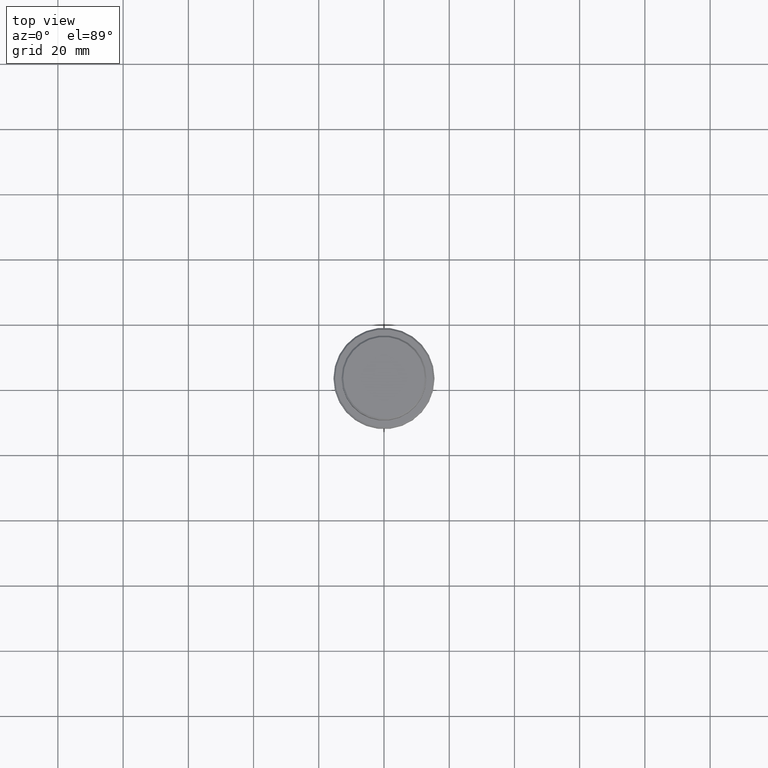
[diagram: clean part render]
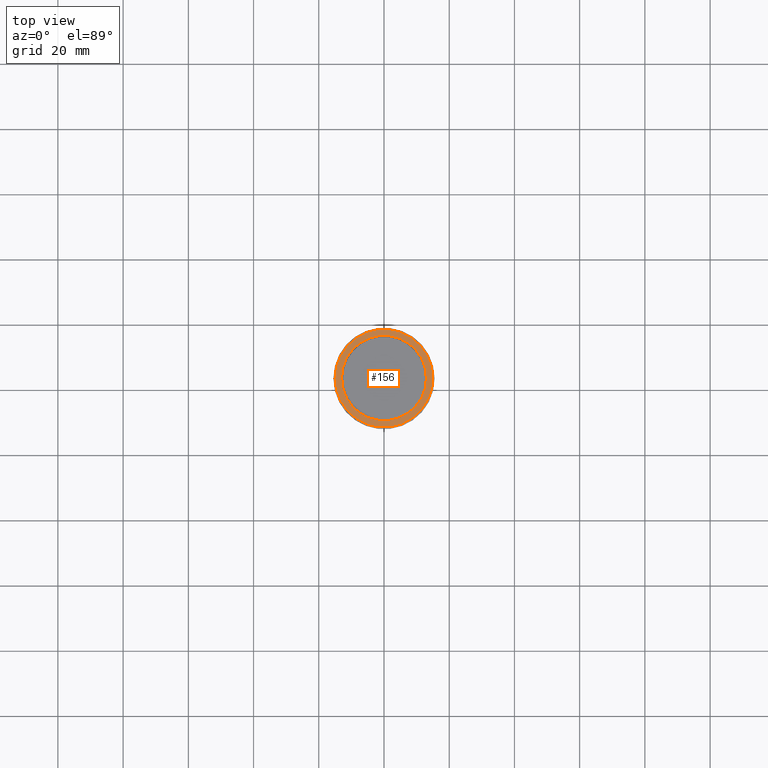
[diagram: same view with one face highlighted and labeled with its STEP entity id]
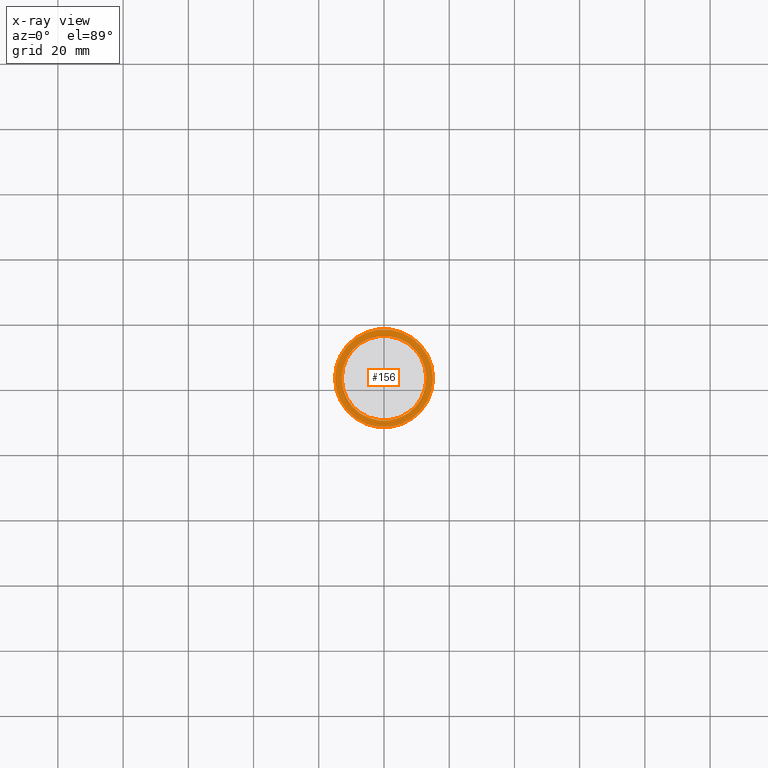
[diagram: x-ray of the same camera — body ghosted, the highlighted face saturated]
A machine part, top view. The second image highlights one B-rep face of the part: STEP entity #156.
The next image is the same camera in x-ray: the body ghosted, the highlighted face saturated — about 0% of this face is hidden behind the body in this view.
In plain terms, the highlighted planar face has unit normal (0, -0, 1).
Its self-contained STEP definition (entity closure, byte-faithful):
#17 = DIRECTION ( 'NONE',  ( 1.000000000000000000, 0.000000000000000000, 0.000000000000000000 ) ) ;
#81 = FACE_BOUND ( 'NONE', #805, .T. ) ;
#89 = DIRECTION ( 'NONE',  ( 0.000000000000000000, -0.000000000000000000, 1.000000000000000000 ) ) ;
#92 = AXIS2_PLACEMENT_3D ( 'NONE', #1083, #89, #191 ) ;
#152 = CARTESIAN_POINT ( 'NONE',  ( -14.99999999999995737, 0.000000000000000000, -9.000000000000000000 ) ) ;
#156 = ADVANCED_FACE ( 'NONE', ( #727, #81 ), #954, .T. ) ;
#160 = AXIS2_PLACEMENT_3D ( 'NONE', #202, #1102, #1117 ) ;
#191 = DIRECTION ( 'NONE',  ( 1.000000000000000000, 0.000000000000000000, 0.000000000000000000 ) ) ;
#202 = CARTESIAN_POINT ( 'NONE',  ( 0.000000000000000000, 0.000000000000000000, -9.000000000000000000 ) ) ;
#226 = CARTESIAN_POINT ( 'NONE',  ( -12.99999999999999467, 1.592040838891558504E-15, -9.000000000000000000 ) ) ;
#240 = EDGE_CURVE ( 'NONE', #337, #1322, #454, .T. ) ;
#285 = CARTESIAN_POINT ( 'NONE',  ( 12.99999999999999467, 0.000000000000000000, -9.000000000000000000 ) ) ;
#337 = VERTEX_POINT ( 'NONE', #226 ) ;
#367 = CIRCLE ( 'NONE', #786, 14.99999999999995737 ) ;
#412 = AXIS2_PLACEMENT_3D ( 'NONE', #743, #879, #1396 ) ;
#422 = VERTEX_POINT ( 'NONE', #578 ) ;
#454 = CIRCLE ( 'NONE', #160, 12.99999999999999467 ) ;
#578 = CARTESIAN_POINT ( 'NONE',  ( 14.99999999999995737, 1.867586368699711009E-15, -9.000000000000000000 ) ) ;
#608 = CIRCLE ( 'NONE', #1072, 12.99999999999999467 ) ;
#712 = EDGE_CURVE ( 'NONE', #997, #422, #367, .T. ) ;
#727 = FACE_OUTER_BOUND ( 'NONE', #891, .T. ) ;
#743 = CARTESIAN_POINT ( 'NONE',  ( 0.000000000000000000, 0.000000000000000000, -9.000000000000000000 ) ) ;
#764 = CIRCLE ( 'NONE', #412, 14.99999999999995737 ) ;
#786 = AXIS2_PLACEMENT_3D ( 'NONE', #942, #1372, #1067 ) ;
#805 = EDGE_LOOP ( 'NONE', ( #1114, #1399 ) ) ;
#879 = DIRECTION ( 'NONE',  ( -0.000000000000000000, -0.000000000000000000, 1.000000000000000000 ) ) ;
#891 = EDGE_LOOP ( 'NONE', ( #940, #1153 ) ) ;
#940 = ORIENTED_EDGE ( 'NONE', *, *, #712, .T. ) ;
#942 = CARTESIAN_POINT ( 'NONE',  ( 0.000000000000000000, 0.000000000000000000, -9.000000000000000000 ) ) ;
#954 = PLANE ( 'NONE',  #92 ) ;
#997 = VERTEX_POINT ( 'NONE', #152 ) ;
#1012 = EDGE_CURVE ( 'NONE', #422, #997, #764, .T. ) ;
#1067 = DIRECTION ( 'NONE',  ( 1.000000000000000000, 0.000000000000000000, 0.000000000000000000 ) ) ;
#1072 = AXIS2_PLACEMENT_3D ( 'NONE', #1341, #1140, #17 ) ;
#1083 = CARTESIAN_POINT ( 'NONE',  ( 0.000000000000000000, 12.49999999999999289, -9.000000000000000000 ) ) ;
#1102 = DIRECTION ( 'NONE',  ( 0.000000000000000000, 0.000000000000000000, -1.000000000000000000 ) ) ;
#1114 = ORIENTED_EDGE ( 'NONE', *, *, #1148, .T. ) ;
#1117 = DIRECTION ( 'NONE',  ( 1.000000000000000000, 0.000000000000000000, 0.000000000000000000 ) ) ;
#1140 = DIRECTION ( 'NONE',  ( 0.000000000000000000, 0.000000000000000000, -1.000000000000000000 ) ) ;
#1148 = EDGE_CURVE ( 'NONE', #1322, #337, #608, .T. ) ;
#1153 = ORIENTED_EDGE ( 'NONE', *, *, #1012, .T. ) ;
#1322 = VERTEX_POINT ( 'NONE', #285 ) ;
#1341 = CARTESIAN_POINT ( 'NONE',  ( 0.000000000000000000, 0.000000000000000000, -9.000000000000000000 ) ) ;
#1372 = DIRECTION ( 'NONE',  ( -0.000000000000000000, -0.000000000000000000, 1.000000000000000000 ) ) ;
#1396 = DIRECTION ( 'NONE',  ( 1.000000000000000000, 0.000000000000000000, 0.000000000000000000 ) ) ;
#1399 = ORIENTED_EDGE ( 'NONE', *, *, #240, .T. ) ;